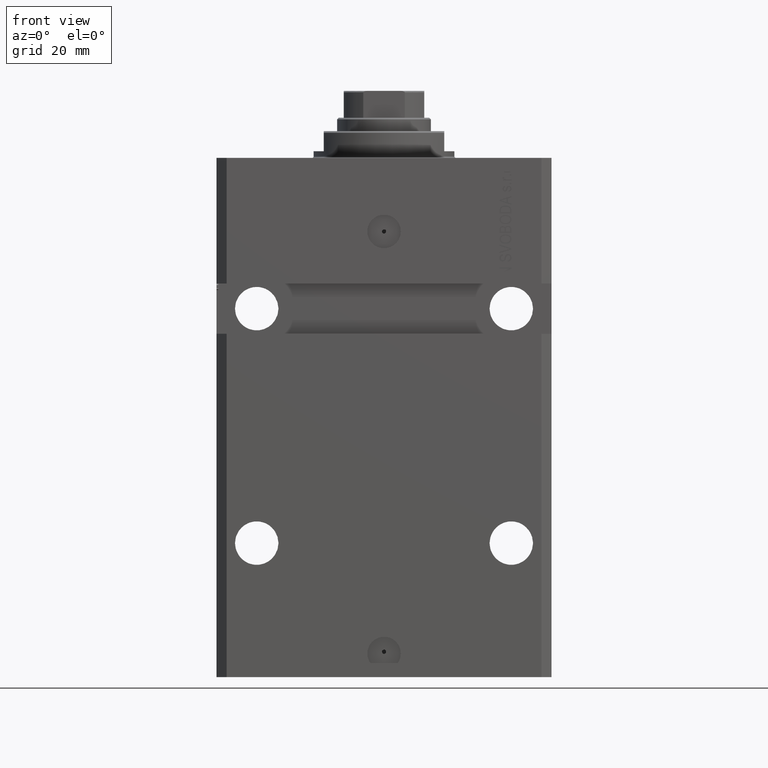
[diagram: clean part render]
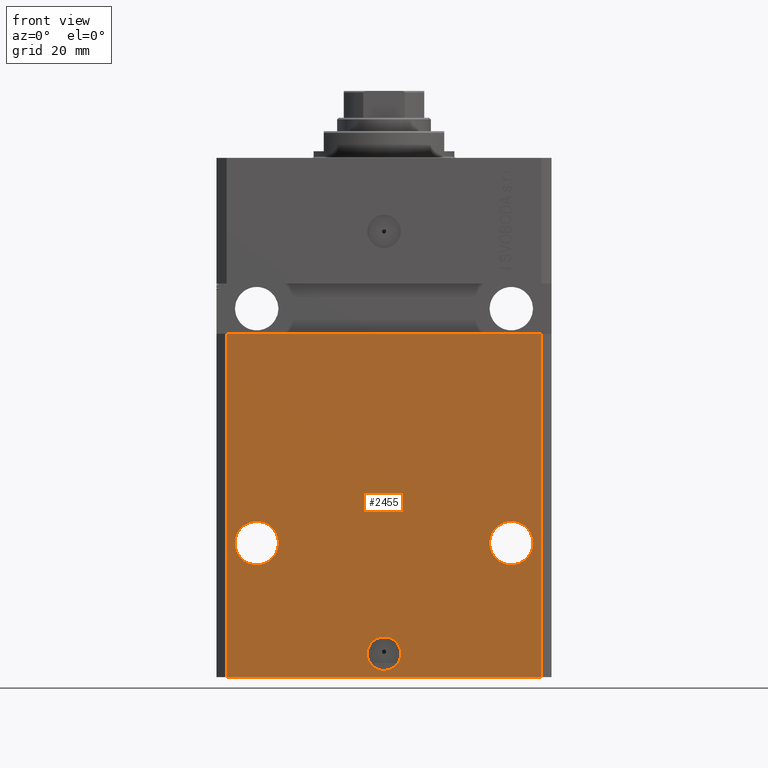
[diagram: same view with one face highlighted and labeled with its STEP entity id]
A machine part, front view. The second image highlights one B-rep face of the part: STEP entity #2455.
In plain terms, the highlighted planar face has unit normal (-0, -1, 0).
Its self-contained STEP definition (entity closure, byte-faithful):
#442 = EDGE_LOOP ( 'NONE', ( #41109, #38436 ) ) ;
#518 = LINE ( 'NONE', #38514, #11757 ) ;
#654 = CARTESIAN_POINT ( 'NONE',  ( -5.536351519074916863E-15, -37.50000000000000000, -148.0000000000000000 ) ) ;
#1095 = DIRECTION ( 'NONE',  ( 1.000000000000000000, 0.000000000000000000, 0.000000000000000000 ) ) ;
#1642 = CARTESIAN_POINT ( 'NONE',  ( 47.00000000000000000, -37.49999999999999289, -52.49999999999998579 ) ) ;
#1817 = CARTESIAN_POINT ( 'NONE',  ( 38.00000000000001421, -37.49999999999999289, -115.0000000000000000 ) ) ;
#1910 = ORIENTED_EDGE ( 'NONE', *, *, #31831, .F. ) ;
#2032 = VERTEX_POINT ( 'NONE', #42480 ) ;
#2355 = EDGE_CURVE ( 'NONE', #41342, #34567, #25319, .T. ) ;
#2455 = ADVANCED_FACE ( 'NONE', ( #30200, #19204, #15791, #33351 ), #8001, .T. ) ;
#3205 = CARTESIAN_POINT ( 'NONE',  ( -38.00000000000002842, -37.50000000000000711, -115.0000000000000000 ) ) ;
#3341 = AXIS2_PLACEMENT_3D ( 'NONE', #19048, #44898, #30284 ) ;
#4134 = AXIS2_PLACEMENT_3D ( 'NONE', #11857, #8199, #37688 ) ;
#5019 = CIRCLE ( 'NONE', #26008, 5.000000000000006217 ) ;
#5680 = CIRCLE ( 'NONE', #14220, 6.499999999999999112 ) ;
#6749 = AXIS2_PLACEMENT_3D ( 'NONE', #45056, #26285, #41153 ) ;
#6751 = EDGE_CURVE ( 'NONE', #19536, #41342, #21360, .T. ) ;
#7423 = ORIENTED_EDGE ( 'NONE', *, *, #11727, .T. ) ;
#8001 = PLANE ( 'NONE',  #6749 ) ;
#8199 = DIRECTION ( 'NONE',  ( 1.176083712526788232E-16, -1.000000000000000000, 0.000000000000000000 ) ) ;
#8355 = VERTEX_POINT ( 'NONE', #27333 ) ;
#9551 = ORIENTED_EDGE ( 'NONE', *, *, #36754, .F. ) ;
#9963 = DIRECTION ( 'NONE',  ( 1.176083712526788232E-16, -1.000000000000000000, 0.000000000000000000 ) ) ;
#10869 = DIRECTION ( 'NONE',  ( 1.000000000000000000, 0.000000000000000000, 0.000000000000000000 ) ) ;
#11384 = CARTESIAN_POINT ( 'NONE',  ( -44.50000000000002842, -37.50000000000000711, -115.0000000000000000 ) ) ;
#11584 = VECTOR ( 'NONE', #13571, 1000.000000000000000 ) ;
#11727 = EDGE_CURVE ( 'NONE', #19536, #40642, #518, .T. ) ;
#11757 = VECTOR ( 'NONE', #42415, 1000.000000000000000 ) ;
#11844 = DIRECTION ( 'NONE',  ( 1.176083712526788232E-16, -1.000000000000000000, 0.000000000000000000 ) ) ;
#11857 = CARTESIAN_POINT ( 'NONE',  ( 38.00000000000001421, -37.49999999999999289, -115.0000000000000000 ) ) ;
#12752 = DIRECTION ( 'NONE',  ( 0.000000000000000000, 0.000000000000000000, 1.000000000000000000 ) ) ;
#13049 = ORIENTED_EDGE ( 'NONE', *, *, #27798, .T. ) ;
#13290 = AXIS2_PLACEMENT_3D ( 'NONE', #27792, #9963, #20932 ) ;
#13571 = DIRECTION ( 'NONE',  ( 0.000000000000000000, 0.000000000000000000, 1.000000000000000000 ) ) ;
#14110 = CARTESIAN_POINT ( 'NONE',  ( -50.00000000000002842, -37.50000000000000711, -52.50000000000000000 ) ) ;
#14220 = AXIS2_PLACEMENT_3D ( 'NONE', #1817, #45682, #1095 ) ;
#15343 = CARTESIAN_POINT ( 'NONE',  ( -47.00000000000000000, -37.49999999999999289, -155.0000000000000000 ) ) ;
#15680 = VECTOR ( 'NONE', #12752, 1000.000000000000000 ) ;
#15791 = FACE_BOUND ( 'NONE', #22346, .T. ) ;
#16858 = VERTEX_POINT ( 'NONE', #11384 ) ;
#17270 = CARTESIAN_POINT ( 'NONE',  ( -31.50000000000002842, -37.50000000000000711, -115.0000000000000000 ) ) ;
#17371 = CIRCLE ( 'NONE', #23617, 6.499999999999999112 ) ;
#18734 = VERTEX_POINT ( 'NONE', #26553 ) ;
#18902 = EDGE_CURVE ( 'NONE', #18734, #8355, #5680, .T. ) ;
#19048 = CARTESIAN_POINT ( 'NONE',  ( -38.00000000000002842, -37.50000000000000711, -115.0000000000000000 ) ) ;
#19195 = EDGE_CURVE ( 'NONE', #16858, #27239, #35243, .T. ) ;
#19204 = FACE_BOUND ( 'NONE', #26485, .T. ) ;
#19536 = VERTEX_POINT ( 'NONE', #15343 ) ;
#20932 = DIRECTION ( 'NONE',  ( 1.000000000000000000, 0.000000000000000000, 0.000000000000000000 ) ) ;
#21360 = LINE ( 'NONE', #32104, #11584 ) ;
#22346 = EDGE_LOOP ( 'NONE', ( #9551, #46743 ) ) ;
#23617 = AXIS2_PLACEMENT_3D ( 'NONE', #3205, #47324, #32693 ) ;
#24380 = CARTESIAN_POINT ( 'NONE',  ( -46.99999999999998579, -37.50000000000000711, -52.50000000000000000 ) ) ;
#25150 = CIRCLE ( 'NONE', #4134, 6.499999999999999112 ) ;
#25319 = LINE ( 'NONE', #14110, #40204 ) ;
#25689 = EDGE_CURVE ( 'NONE', #39905, #2032, #47519, .T. ) ;
#26008 = AXIS2_PLACEMENT_3D ( 'NONE', #654, #11844, #10869 ) ;
#26285 = DIRECTION ( 'NONE',  ( -1.476360405086644309E-16, -1.000000000000000000, 0.000000000000000000 ) ) ;
#26485 = EDGE_LOOP ( 'NONE', ( #1910, #38910 ) ) ;
#26553 = CARTESIAN_POINT ( 'NONE',  ( 31.50000000000001421, -37.49999999999999289, -115.0000000000000000 ) ) ;
#27239 = VERTEX_POINT ( 'NONE', #17270 ) ;
#27333 = CARTESIAN_POINT ( 'NONE',  ( 44.50000000000001421, -37.49999999999999289, -115.0000000000000000 ) ) ;
#27622 = CARTESIAN_POINT ( 'NONE',  ( 47.00000000000000000, -37.50000000000000711, -155.0000000000000000 ) ) ;
#27792 = CARTESIAN_POINT ( 'NONE',  ( -5.536351519074916863E-15, -37.50000000000000000, -148.0000000000000000 ) ) ;
#27798 = EDGE_CURVE ( 'NONE', #40642, #34567, #28096, .T. ) ;
#28096 = LINE ( 'NONE', #27622, #15680 ) ;
#29893 = ORIENTED_EDGE ( 'NONE', *, *, #2355, .F. ) ;
#29898 = ORIENTED_EDGE ( 'NONE', *, *, #6751, .F. ) ;
#30200 = FACE_BOUND ( 'NONE', #442, .T. ) ;
#30284 = DIRECTION ( 'NONE',  ( -1.000000000000000000, 0.000000000000000000, 0.000000000000000000 ) ) ;
#31831 = EDGE_CURVE ( 'NONE', #8355, #18734, #25150, .T. ) ;
#32104 = CARTESIAN_POINT ( 'NONE',  ( -47.00000000000000000, -37.49999999999999289, -155.0000000000000000 ) ) ;
#32693 = DIRECTION ( 'NONE',  ( -1.000000000000000000, 0.000000000000000000, 0.000000000000000000 ) ) ;
#33351 = FACE_OUTER_BOUND ( 'NONE', #47676, .T. ) ;
#34060 = EDGE_CURVE ( 'NONE', #2032, #39905, #5019, .T. ) ;
#34567 = VERTEX_POINT ( 'NONE', #1642 ) ;
#35243 = CIRCLE ( 'NONE', #3341, 6.499999999999999112 ) ;
#36754 = EDGE_CURVE ( 'NONE', #27239, #16858, #17371, .T. ) ;
#37688 = DIRECTION ( 'NONE',  ( 1.000000000000000000, 0.000000000000000000, 0.000000000000000000 ) ) ;
#38436 = ORIENTED_EDGE ( 'NONE', *, *, #25689, .F. ) ;
#38514 = CARTESIAN_POINT ( 'NONE',  ( -47.00000000000000000, -37.49999999999999289, -155.0000000000000000 ) ) ;
#38910 = ORIENTED_EDGE ( 'NONE', *, *, #18902, .F. ) ;
#39905 = VERTEX_POINT ( 'NONE', #45040 ) ;
#40204 = VECTOR ( 'NONE', #43607, 1000.000000000000000 ) ;
#40642 = VERTEX_POINT ( 'NONE', #48167 ) ;
#41109 = ORIENTED_EDGE ( 'NONE', *, *, #34060, .F. ) ;
#41153 = DIRECTION ( 'NONE',  ( 1.000000000000000000, -1.476360405086644309E-16, 0.000000000000000000 ) ) ;
#41342 = VERTEX_POINT ( 'NONE', #24380 ) ;
#42415 = DIRECTION ( 'NONE',  ( 1.000000000000000000, -1.476360405086644309E-16, 0.000000000000000000 ) ) ;
#42480 = CARTESIAN_POINT ( 'NONE',  ( 5.000000000000000888, -37.50000000000000000, -148.0000000000000000 ) ) ;
#43607 = DIRECTION ( 'NONE',  ( 1.000000000000000000, 1.387778780781445182E-16, 1.387778780781445182E-16 ) ) ;
#44898 = DIRECTION ( 'NONE',  ( 1.176083712526788232E-16, -1.000000000000000000, 0.000000000000000000 ) ) ;
#45040 = CARTESIAN_POINT ( 'NONE',  ( -5.000000000000011546, -37.50000000000000000, -148.0000000000000000 ) ) ;
#45056 = CARTESIAN_POINT ( 'NONE',  ( -47.00000000000000000, -37.49999999999999289, -155.0000000000000000 ) ) ;
#45682 = DIRECTION ( 'NONE',  ( 1.176083712526788232E-16, -1.000000000000000000, 0.000000000000000000 ) ) ;
#46743 = ORIENTED_EDGE ( 'NONE', *, *, #19195, .F. ) ;
#47324 = DIRECTION ( 'NONE',  ( 1.176083712526788232E-16, -1.000000000000000000, 0.000000000000000000 ) ) ;
#47519 = CIRCLE ( 'NONE', #13290, 5.000000000000006217 ) ;
#47676 = EDGE_LOOP ( 'NONE', ( #29893, #29898, #7423, #13049 ) ) ;
#48167 = CARTESIAN_POINT ( 'NONE',  ( 47.00000000000000000, -37.50000000000000711, -155.0000000000000000 ) ) ;